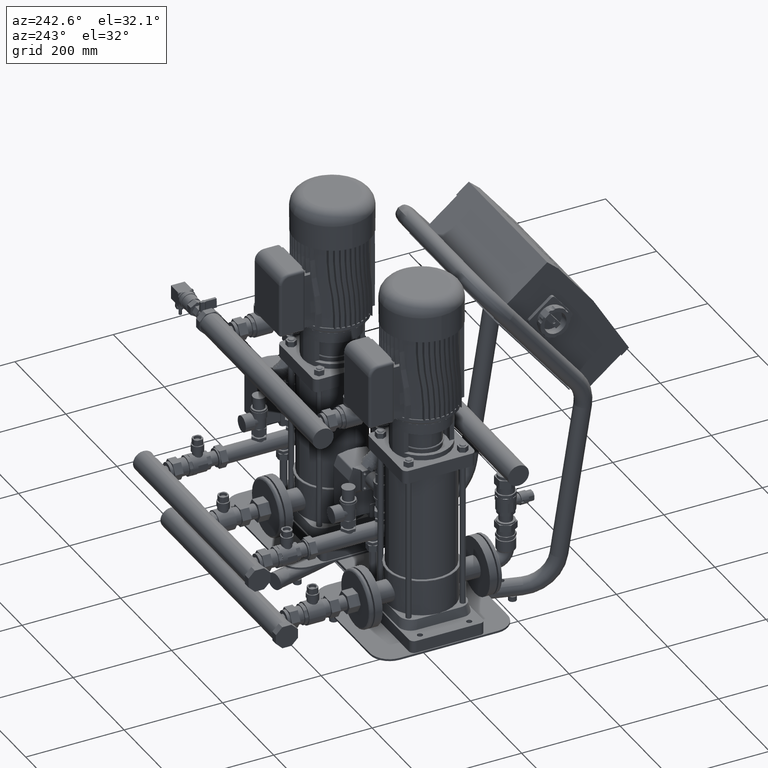
[diagram: clean part render]
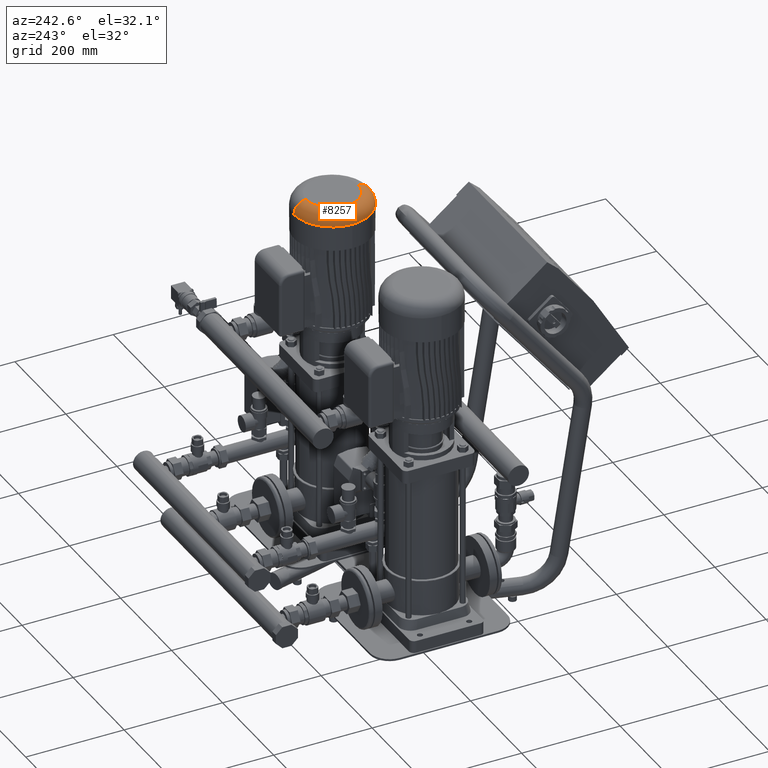
[diagram: same view with one face highlighted and labeled with its STEP entity id]
A machine part, auxiliary view. The second image highlights one B-rep face of the part: STEP entity #8257.
In plain terms, the highlighted toroidal blend (fillet) surface has major radius 53 mm and minor (blend) radius 25 mm.
Its self-contained STEP definition (entity closure, byte-faithful):
#8160=CARTESIAN_POINT('',(64.000000000000071,-3.534201E-014,736.0));
#8161=VERTEX_POINT('',#8160);
#8170=CARTESIAN_POINT('',(142.000000000000060,77.999999999999943,736.0));
#8171=VERTEX_POINT('',#8170);
#8172=CARTESIAN_POINT('',(142.000000000000060,-5.444650E-014,736.0));
#8173=DIRECTION('',(0.0,0.0,1.0));
#8174=DIRECTION('',(1.0,0.0,0.0));
#8175=AXIS2_PLACEMENT_3D('',#8172,#8173,#8174);
#8176=CIRCLE('',#8175,78.0);
#8177=EDGE_CURVE('',#8171,#8161,#8176,.T.);
#8206=CARTESIAN_POINT('',(142.000000000000060,-5.444650E-014,736.0));
#8207=DIRECTION('',(-4.499279E-032,-1.836970E-016,1.0));
#8208=DIRECTION('',(0.0,-1.0,0.0));
#8209=AXIS2_PLACEMENT_3D('',#8206,#8207,#8208);
#8210=TOROIDAL_SURFACE('',#8209,53.000000000000007,25.0);
#8211=CARTESIAN_POINT('',(142.0,-53.000000000000064,761.0));
#8212=VERTEX_POINT('',#8211);
#8213=CARTESIAN_POINT('',(142.0,-78.000000000000057,736.0));
#8214=VERTEX_POINT('',#8213);
#8215=CARTESIAN_POINT('',(142.000000000000030,-53.000000000000064,736.0));
#8216=DIRECTION('',(1.0,0.0,0.0));
#8217=DIRECTION('',(0.0,-1.0,0.0));
#8218=AXIS2_PLACEMENT_3D('',#8215,#8216,#8217);
#8219=CIRCLE('',#8218,25.0);
#8220=EDGE_CURVE('',#8212,#8214,#8219,.T.);
#8221=ORIENTED_EDGE('',*,*,#8220,.F.);
#8222=CARTESIAN_POINT('',(89.000000000000057,-3.307684E-014,761.0));
#8223=VERTEX_POINT('',#8222);
#8224=CARTESIAN_POINT('',(142.000000000000060,-5.903892E-014,761.0));
#8225=DIRECTION('',(0.0,0.0,-1.0));
#8226=DIRECTION('',(1.0,0.0,0.0));
#8227=AXIS2_PLACEMENT_3D('',#8224,#8225,#8226);
#8228=CIRCLE('',#8227,53.000000000000007);
#8229=EDGE_CURVE('',#8212,#8223,#8228,.T.);
#8230=ORIENTED_EDGE('',*,*,#8229,.T.);
#8231=CARTESIAN_POINT('',(142.000000000000060,52.999999999999950,761.0));
#8232=VERTEX_POINT('',#8231);
#8233=CARTESIAN_POINT('',(142.000000000000060,-5.903892E-014,761.0));
#8234=DIRECTION('',(0.0,0.0,-1.0));
#8235=DIRECTION('',(1.0,0.0,0.0));
#8236=AXIS2_PLACEMENT_3D('',#8233,#8234,#8235);
#8237=CIRCLE('',#8236,53.000000000000007);
#8238=EDGE_CURVE('',#8223,#8232,#8237,.T.);
#8239=ORIENTED_EDGE('',*,*,#8238,.T.);
#8240=CARTESIAN_POINT('',(142.000000000000060,52.999999999999950,736.0));
#8241=DIRECTION('',(-1.0,0.0,0.0));
#8242=DIRECTION('',(0.0,1.0,0.0));
#8243=AXIS2_PLACEMENT_3D('',#8240,#8241,#8242);
#8244=CIRCLE('',#8243,25.0);
#8245=EDGE_CURVE('',#8232,#8171,#8244,.T.);
#8246=ORIENTED_EDGE('',*,*,#8245,.T.);
#8247=ORIENTED_EDGE('',*,*,#8177,.T.);
#8248=CARTESIAN_POINT('',(142.000000000000060,-5.444650E-014,736.0));
#8249=DIRECTION('',(0.0,0.0,1.0));
#8250=DIRECTION('',(1.0,0.0,0.0));
#8251=AXIS2_PLACEMENT_3D('',#8248,#8249,#8250);
#8252=CIRCLE('',#8251,78.0);
#8253=EDGE_CURVE('',#8161,#8214,#8252,.T.);
#8254=ORIENTED_EDGE('',*,*,#8253,.T.);
#8255=EDGE_LOOP('',(#8221,#8230,#8239,#8246,#8247,#8254));
#8256=FACE_OUTER_BOUND('',#8255,.T.);
#8257=ADVANCED_FACE('',(#8256),#8210,.T.);